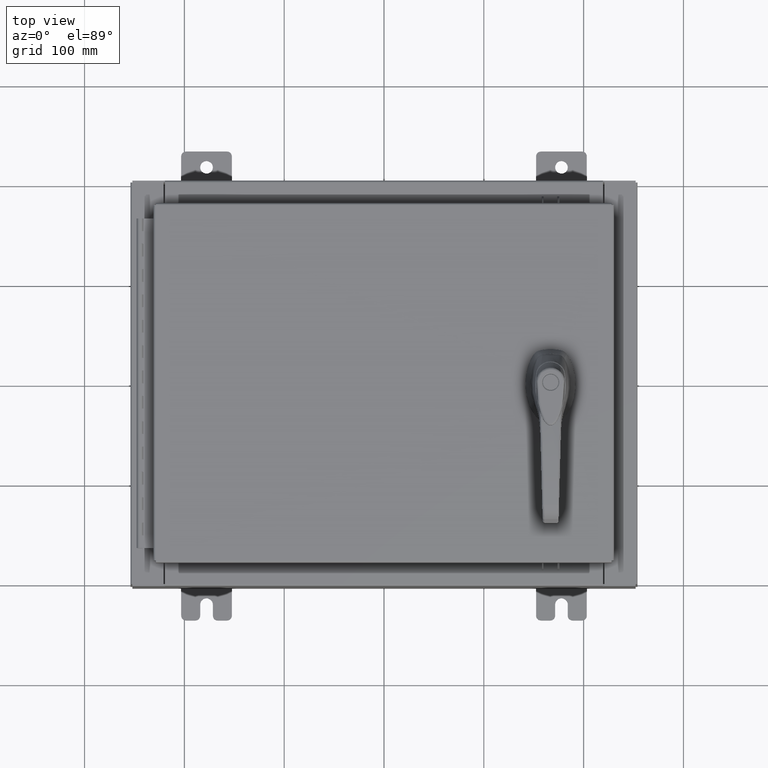
[diagram: clean part render]
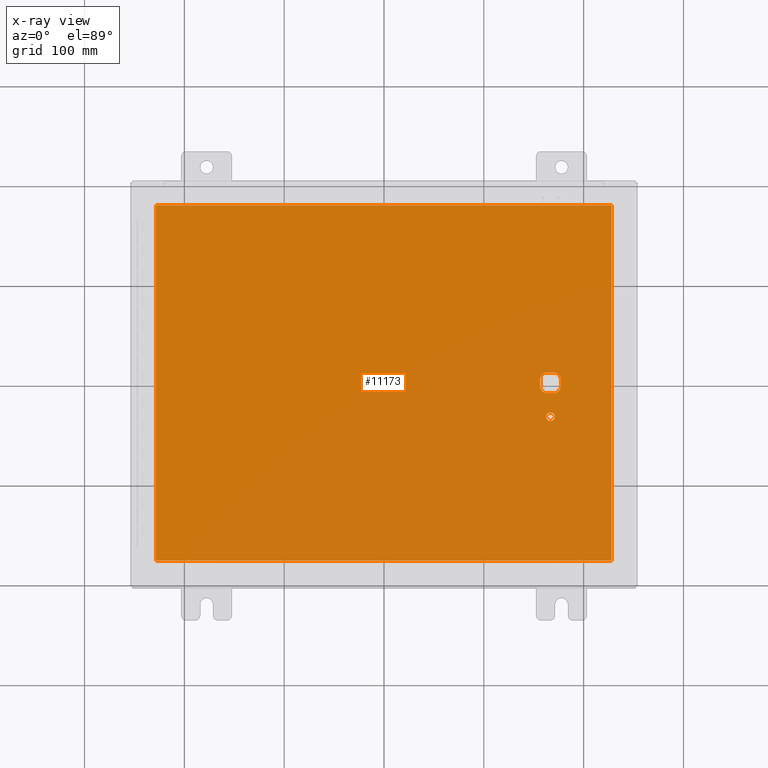
[diagram: x-ray — body ghosted, one internal face saturated and labeled with its STEP entity id]
A machine part, top view, then the same camera in x-ray: the body is ghosted and one INTERNAL B-rep face — a face not visible from any outside direction — is saturated and labeled: STEP entity #11173.
In plain terms, the highlighted planar face has unit normal (0, 0, -1).
Its self-contained STEP definition (entity closure, byte-faithful):
#148 = CARTESIAN_POINT ( 'NONE',  ( 6.778227370756309400, -0.4029999999999252000, -0.07470000000000003000 ) ) ;
#862 = VECTOR ( 'NONE', #97249, 39.37007874015748100 ) ;
#2685 = CARTESIAN_POINT ( 'NONE',  ( 6.175000000000073500, 0.0000000000000000000, -0.07470000000000003000 ) ) ;
#3052 = CARTESIAN_POINT ( 'NONE',  ( 6.175000000000073500, -0.2002273707563079800, -0.07470000000000003000 ) ) ;
#3407 = ORIENTED_EDGE ( 'NONE', *, *, #48135, .T. ) ;
#3488 = VERTEX_POINT ( 'NONE', #69309 ) ;
#3612 = EDGE_LOOP ( 'NONE', ( #3407, #98008 ) ) ;
#4702 = VERTEX_POINT ( 'NONE', #62312 ) ;
#5833 = VECTOR ( 'NONE', #29153, 39.37007874015748100 ) ;
#6042 = LINE ( 'NONE', #30421, #862 ) ;
#7298 = LINE ( 'NONE', #34253, #26562 ) ;
#8391 = VERTEX_POINT ( 'NONE', #78444 ) ;
#9093 = VERTEX_POINT ( 'NONE', #148 ) ;
#9278 = AXIS2_PLACEMENT_3D ( 'NONE', #20053, #77923, #28313 ) ;
#10018 = DIRECTION ( 'NONE',  ( -0.0000000000000000000, -0.0000000000000000000, 1.000000000000000000 ) ) ;
#10367 = AXIS2_PLACEMENT_3D ( 'NONE', #39459, #93206, #32197 ) ;
#11173 = ADVANCED_FACE ( 'NONE', ( #76055, #95748, #12724 ), #77352, .T. ) ;
#11238 = VERTEX_POINT ( 'NONE', #56490 ) ;
#11711 = CARTESIAN_POINT ( 'NONE',  ( 6.749500000000001200, -1.338000000000000100, -0.07470000000000003000 ) ) ;
#12619 = VECTOR ( 'NONE', #76707, 39.37007874015748100 ) ;
#12724 = FACE_BOUND ( 'NONE', #52852, .T. ) ;
#15215 = LINE ( 'NONE', #2685, #12619 ) ;
#17101 = EDGE_CURVE ( 'NONE', #9093, #31338, #57130, .T. ) ;
#18453 = EDGE_CURVE ( 'NONE', #32883, #67811, #88432, .T. ) ;
#19977 = LINE ( 'NONE', #25686, #44482 ) ;
#20053 = CARTESIAN_POINT ( 'NONE',  ( 6.577999999999999400, -1.338000000000000100, -0.07470000000000003000 ) ) ;
#20443 = CARTESIAN_POINT ( 'NONE',  ( 0.0000000000000000000, 0.0000000000000000000, -0.07470000000000000300 ) ) ;
#20884 = CARTESIAN_POINT ( 'NONE',  ( 0.0000000000000000000, 0.4029999999999252000, -0.07470000000000003000 ) ) ;
#21183 = CIRCLE ( 'NONE', #61804, 0.4499999999999156900 ) ;
#21739 = AXIS2_PLACEMENT_3D ( 'NONE', #48844, #107002, #57075 ) ;
#22237 = VECTOR ( 'NONE', #72658, 39.37007874015748100 ) ;
#23194 = CARTESIAN_POINT ( 'NONE',  ( 8.990299999999999500, -7.006299999999998600, -0.07470000000000076600 ) ) ;
#23939 = AXIS2_PLACEMENT_3D ( 'NONE', #20443, #100521, #85078 ) ;
#24774 = LINE ( 'NONE', #75701, #88387 ) ;
#25114 = LINE ( 'NONE', #87241, #5833 ) ;
#25172 = ORIENTED_EDGE ( 'NONE', *, *, #72726, .T. ) ;
#25686 = CARTESIAN_POINT ( 'NONE',  ( 0.0000000000000000000, -0.4029999999999252000, -0.07470000000000003000 ) ) ;
#26562 = VECTOR ( 'NONE', #51848, 39.37007874015748100 ) ;
#28313 = DIRECTION ( 'NONE',  ( -1.000000000000000000, 0.0000000000000000000, 0.0000000000000000000 ) ) ;
#29143 = DIRECTION ( 'NONE',  ( -1.000000000000000000, 0.0000000000000000000, 0.0000000000000000000 ) ) ;
#29153 = DIRECTION ( 'NONE',  ( -1.000000000000000000, -0.0000000000000000000, -0.0000000000000000000 ) ) ;
#29194 = ORIENTED_EDGE ( 'NONE', *, *, #64837, .T. ) ;
#29945 = CARTESIAN_POINT ( 'NONE',  ( 6.577999999999999400, 0.0000000000000000000, -0.07470000000000003000 ) ) ;
#30421 = CARTESIAN_POINT ( 'NONE',  ( 6.980999999999925300, 1.904937449034470600E-014, -0.07470000000000003000 ) ) ;
#31338 = VERTEX_POINT ( 'NONE', #82635 ) ;
#32197 = DIRECTION ( 'NONE',  ( -1.000000000000000000, 1.776356839400251300E-015, 0.0000000000000000000 ) ) ;
#32883 = VERTEX_POINT ( 'NONE', #49711 ) ;
#34253 = CARTESIAN_POINT ( 'NONE',  ( -8.990299999999999500, 7.006300000000001300, -0.07470000000000183400 ) ) ;
#37118 = DIRECTION ( 'NONE',  ( -0.0000000000000000000, -0.0000000000000000000, 1.000000000000000000 ) ) ;
#38270 = DIRECTION ( 'NONE',  ( -1.000000000000000000, 0.0000000000000000000, 0.0000000000000000000 ) ) ;
#39459 = CARTESIAN_POINT ( 'NONE',  ( 6.577999999999999400, 0.0000000000000000000, -0.07470000000000003000 ) ) ;
#40153 = CIRCLE ( 'NONE', #9278, 0.1715000000000011500 ) ;
#40292 = VERTEX_POINT ( 'NONE', #88036 ) ;
#41258 = EDGE_CURVE ( 'NONE', #48945, #31338, #6042, .T. ) ;
#41928 = DIRECTION ( 'NONE',  ( 1.000000000000000000, 0.0000000000000000000, 0.0000000000000000000 ) ) ;
#43083 = EDGE_CURVE ( 'NONE', #67811, #8391, #25114, .T. ) ;
#43494 = LINE ( 'NONE', #20884, #65414 ) ;
#44482 = VECTOR ( 'NONE', #41928, 39.37007874015748100 ) ;
#48135 = EDGE_CURVE ( 'NONE', #92517, #11238, #40153, .T. ) ;
#48844 = CARTESIAN_POINT ( 'NONE',  ( 6.577999999999999400, 0.0000000000000000000, -0.07470000000000003000 ) ) ;
#48945 = VERTEX_POINT ( 'NONE', #78864 ) ;
#49711 = CARTESIAN_POINT ( 'NONE',  ( 8.990299999999999500, -7.006299999999998600, -0.07470000000000000300 ) ) ;
#50963 = VERTEX_POINT ( 'NONE', #101142 ) ;
#51022 = ORIENTED_EDGE ( 'NONE', *, *, #67433, .F. ) ;
#51848 = DIRECTION ( 'NONE',  ( 0.0000000000000000000, -1.000000000000000000, 0.0000000000000000000 ) ) ;
#52852 = EDGE_LOOP ( 'NONE', ( #65187, #99244, #79601, #25172, #91450, #62649, #29194, #71824 ) ) ;
#56490 = CARTESIAN_POINT ( 'NONE',  ( 6.406499999999998500, -1.338000000000000100, -0.07470000000000003000 ) ) ;
#57075 = DIRECTION ( 'NONE',  ( -1.000000000000000000, 8.881784197001256300E-016, 0.0000000000000000000 ) ) ;
#57130 = CIRCLE ( 'NONE', #10367, 0.4499999999999156900 ) ;
#59289 = CARTESIAN_POINT ( 'NONE',  ( 6.577999999999999400, -1.338000000000000100, -0.07470000000000003000 ) ) ;
#61063 = EDGE_CURVE ( 'NONE', #11238, #92517, #83218, .T. ) ;
#61099 = CIRCLE ( 'NONE', #21739, 0.4499999999999156900 ) ;
#61804 = AXIS2_PLACEMENT_3D ( 'NONE', #29945, #88034, #38270 ) ;
#62312 = CARTESIAN_POINT ( 'NONE',  ( -8.990299999999996000, -7.006299999999998600, -0.07470000000000000300 ) ) ;
#62649 = ORIENTED_EDGE ( 'NONE', *, *, #73868, .T. ) ;
#64837 = EDGE_CURVE ( 'NONE', #79331, #3488, #61099, .T. ) ;
#65187 = ORIENTED_EDGE ( 'NONE', *, *, #17101, .T. ) ;
#65414 = VECTOR ( 'NONE', #29143, 39.37007874015748100 ) ;
#67433 = EDGE_CURVE ( 'NONE', #4702, #32883, #24774, .T. ) ;
#67692 = DIRECTION ( 'NONE',  ( -1.000000000000000000, 0.0000000000000000000, 0.0000000000000000000 ) ) ;
#67811 = VERTEX_POINT ( 'NONE', #80057 ) ;
#69309 = CARTESIAN_POINT ( 'NONE',  ( 6.377772629243690300, -0.4029999999999250300, -0.07470000000000003000 ) ) ;
#71824 = ORIENTED_EDGE ( 'NONE', *, *, #82171, .T. ) ;
#71951 = EDGE_CURVE ( 'NONE', #40292, #74742, #77328, .T. ) ;
#72658 = DIRECTION ( 'NONE',  ( 0.0000000000000000000, 1.000000000000000000, 0.0000000000000000000 ) ) ;
#72726 = EDGE_CURVE ( 'NONE', #50963, #40292, #43494, .T. ) ;
#73868 = EDGE_CURVE ( 'NONE', #74742, #79331, #15215, .T. ) ;
#74742 = VERTEX_POINT ( 'NONE', #93442 ) ;
#75701 = CARTESIAN_POINT ( 'NONE',  ( -8.990299999999997700, -7.006299999999998600, -0.07469999999999966900 ) ) ;
#76055 = FACE_BOUND ( 'NONE', #3612, .T. ) ;
#76707 = DIRECTION ( 'NONE',  ( 0.0000000000000000000, -1.000000000000000000, 0.0000000000000000000 ) ) ;
#77328 = CIRCLE ( 'NONE', #96433, 0.4499999999999156900 ) ;
#77352 = PLANE ( 'NONE',  #23939 ) ;
#77923 = DIRECTION ( 'NONE',  ( -0.0000000000000000000, -0.0000000000000000000, 1.000000000000000000 ) ) ;
#78444 = CARTESIAN_POINT ( 'NONE',  ( -8.990299999999997700, 7.006300000000000400, -0.07470000000000000300 ) ) ;
#78864 = CARTESIAN_POINT ( 'NONE',  ( 6.980999999999925300, 0.2002273707563080300, -0.07470000000000003000 ) ) ;
#79331 = VERTEX_POINT ( 'NONE', #3052 ) ;
#79601 = ORIENTED_EDGE ( 'NONE', *, *, #105061, .T. ) ;
#80057 = CARTESIAN_POINT ( 'NONE',  ( 8.990299999999997700, 7.006300000000001300, -0.07470000000000000300 ) ) ;
#82171 = EDGE_CURVE ( 'NONE', #3488, #9093, #19977, .T. ) ;
#82635 = CARTESIAN_POINT ( 'NONE',  ( 6.980999999999925300, -0.2002273707563075900, -0.07470000000000003000 ) ) ;
#83218 = CIRCLE ( 'NONE', #90429, 0.1715000000000011500 ) ;
#83600 = ORIENTED_EDGE ( 'NONE', *, *, #18453, .F. ) ;
#85078 = DIRECTION ( 'NONE',  ( -1.000000000000000000, 0.0000000000000000000, -0.0000000000000000000 ) ) ;
#86841 = CARTESIAN_POINT ( 'NONE',  ( 6.577999999999999400, 0.0000000000000000000, -0.07470000000000003000 ) ) ;
#87241 = CARTESIAN_POINT ( 'NONE',  ( 8.990300000000001300, 7.006300000000001300, -0.07470000000000021100 ) ) ;
#88034 = DIRECTION ( 'NONE',  ( -0.0000000000000000000, -0.0000000000000000000, 1.000000000000000000 ) ) ;
#88036 = CARTESIAN_POINT ( 'NONE',  ( 6.377772629243690300, 0.4029999999999252000, -0.07470000000000003000 ) ) ;
#88387 = VECTOR ( 'NONE', #100942, 39.37007874015748100 ) ;
#88432 = LINE ( 'NONE', #23194, #22237 ) ;
#90429 = AXIS2_PLACEMENT_3D ( 'NONE', #59289, #10018, #67692 ) ;
#91450 = ORIENTED_EDGE ( 'NONE', *, *, #71951, .T. ) ;
#92517 = VERTEX_POINT ( 'NONE', #11711 ) ;
#93206 = DIRECTION ( 'NONE',  ( -0.0000000000000000000, -0.0000000000000000000, 1.000000000000000000 ) ) ;
#93442 = CARTESIAN_POINT ( 'NONE',  ( 6.175000000000073500, 0.2002273707563080300, -0.07470000000000003000 ) ) ;
#95240 = DIRECTION ( 'NONE',  ( -1.000000000000000000, 0.0000000000000000000, 0.0000000000000000000 ) ) ;
#95392 = ORIENTED_EDGE ( 'NONE', *, *, #101369, .F. ) ;
#95748 = FACE_OUTER_BOUND ( 'NONE', #105226, .T. ) ;
#96433 = AXIS2_PLACEMENT_3D ( 'NONE', #86841, #37118, #95240 ) ;
#97249 = DIRECTION ( 'NONE',  ( 2.728745808672813300E-015, -1.000000000000000000, 0.0000000000000000000 ) ) ;
#98008 = ORIENTED_EDGE ( 'NONE', *, *, #61063, .T. ) ;
#99244 = ORIENTED_EDGE ( 'NONE', *, *, #41258, .F. ) ;
#100521 = DIRECTION ( 'NONE',  ( 0.0000000000000000000, 0.0000000000000000000, -1.000000000000000000 ) ) ;
#100942 = DIRECTION ( 'NONE',  ( 1.000000000000000000, -0.0000000000000000000, -0.0000000000000000000 ) ) ;
#101142 = CARTESIAN_POINT ( 'NONE',  ( 6.778227370756309400, 0.4029999999999250300, -0.07470000000000003000 ) ) ;
#101369 = EDGE_CURVE ( 'NONE', #8391, #4702, #7298, .T. ) ;
#105061 = EDGE_CURVE ( 'NONE', #48945, #50963, #21183, .T. ) ;
#105226 = EDGE_LOOP ( 'NONE', ( #83600, #51022, #95392, #106970 ) ) ;
#106970 = ORIENTED_EDGE ( 'NONE', *, *, #43083, .F. ) ;
#107002 = DIRECTION ( 'NONE',  ( -0.0000000000000000000, -0.0000000000000000000, 1.000000000000000000 ) ) ;